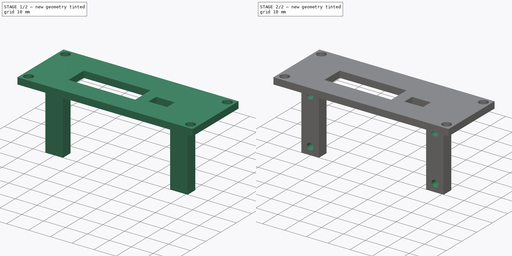
[diagram: build sequence overview — one tinted view per stage of 2, left to right]
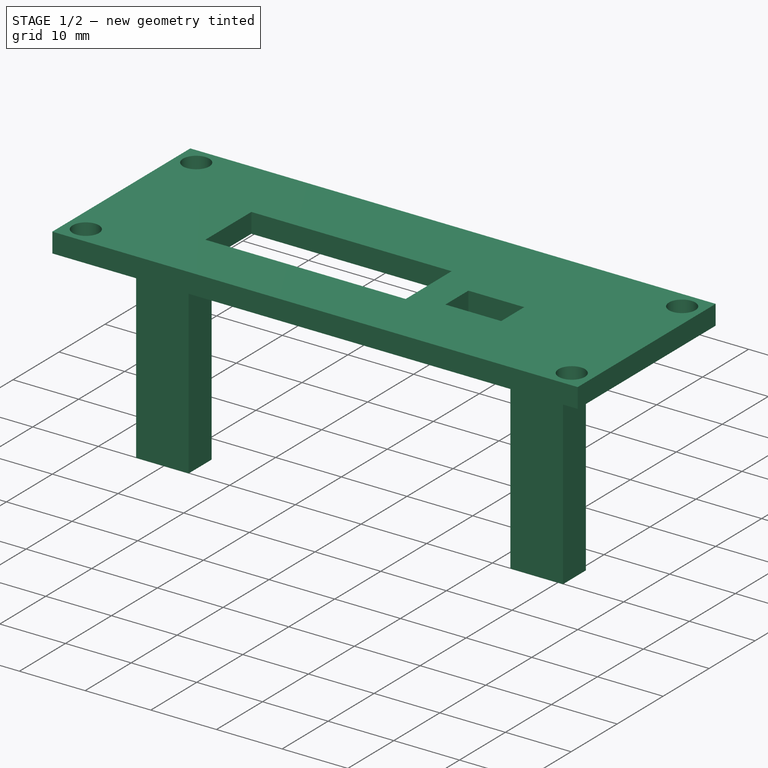
[diagram: stage 1 of 2 — iso view after this stage's code; geometry added in this stage tinted green]
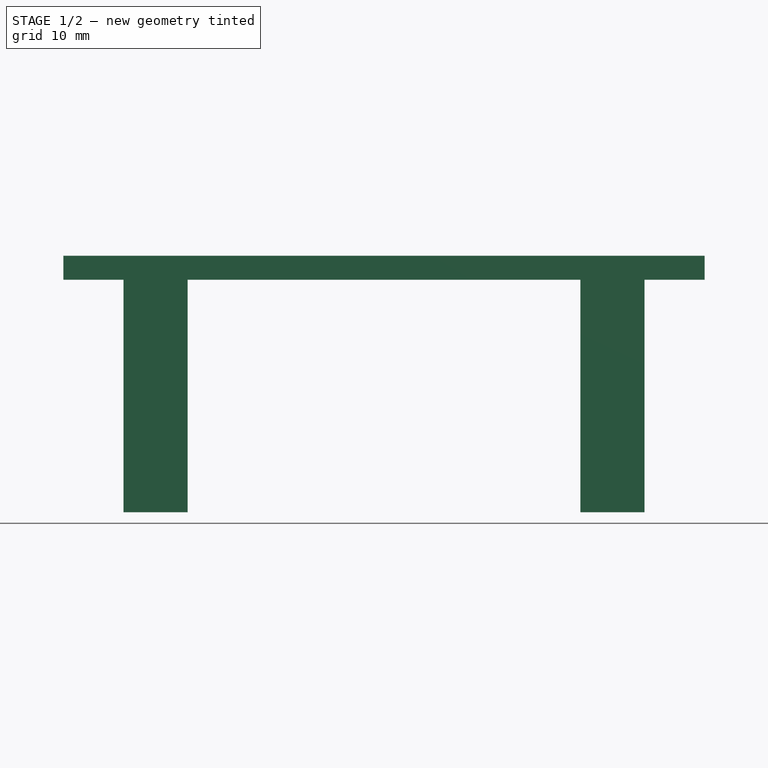
[diagram: stage 1 of 2 — front view after this stage's code; geometry added in this stage tinted green]
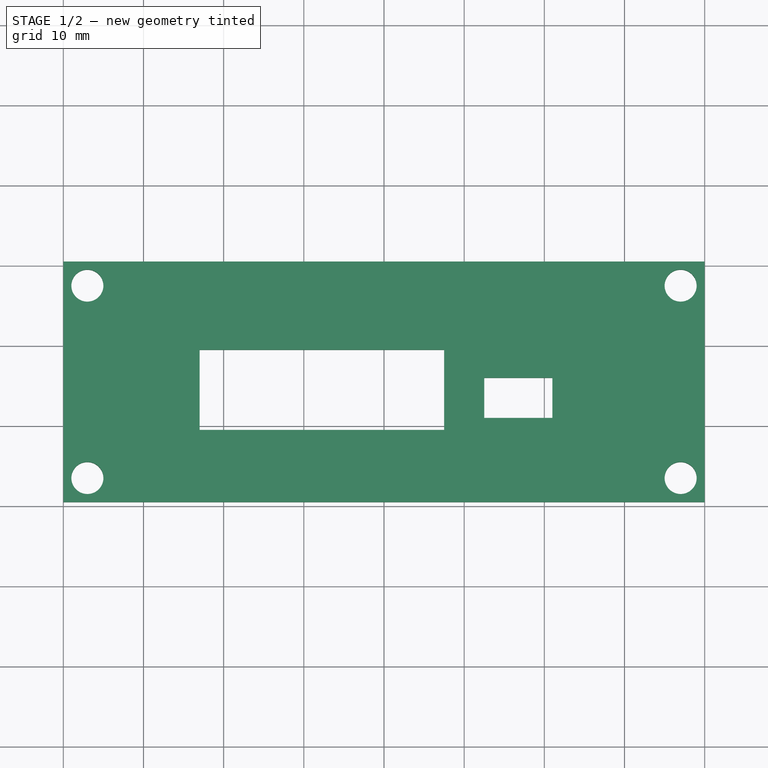
[diagram: stage 1 of 2 — top view after this stage's code; geometry added in this stage tinted green]
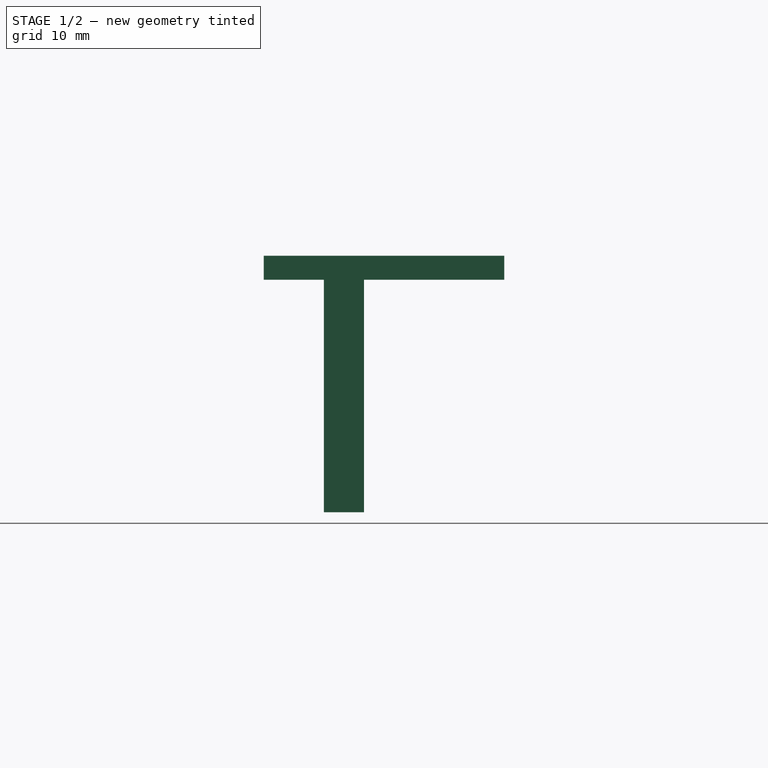
[diagram: stage 1 of 2 — right view after this stage's code; geometry added in this stage tinted green]
FCSTD DOCUMENT  (FreeCAD 0.17RUnknown)
Label: td-rgb-bracket
License: All rights reserved
LicenseURL: http://en.wikipedia.org/wiki/All_rights_reserved
objects: Sketcher::SketchObject×3, PartDesign::Pad×2, PartDesign::Pocket×1, PartDesign::Body×1
note: 10 computed .brp shape members not serialized (recipe doc carries the construction recipe); baked Part::Feature solids carry a one-line shape summary decoded from their .brp

FEATURE [Sketcher::SketchObject] Sketch
  MapMode = 5
  Support = -> [XY_Plane]
  sketch-geometry (17):
    g0: LineSegment StartX=0 StartY=0 StartZ=0 EndX=80 EndY=0 EndZ=0
    g1: LineSegment StartX=80 StartY=0 StartZ=0 EndX=80 EndY=30 EndZ=0
    g2: LineSegment StartX=80 StartY=30 StartZ=0 EndX=0 EndY=30 EndZ=0
    g3: LineSegment StartX=0 StartY=30 StartZ=0 EndX=0 EndY=0 EndZ=0
    g4: LineSegment StartX=52.5 StartY=15.5 StartZ=0 EndX=61 EndY=15.5 EndZ=0
    g5: LineSegment StartX=61 StartY=15.5 StartZ=0 EndX=61 EndY=10.5 EndZ=0
    g6: LineSegment StartX=61 StartY=10.5 StartZ=0 EndX=52.5 EndY=10.5 EndZ=0
    g7: LineSegment StartX=52.5 StartY=10.5 StartZ=0 EndX=52.5 EndY=15.5 EndZ=0
    g8: LineSegment [constr] StartX=7.5 StartY=7.5 StartZ=0 EndX=72.5 EndY=7.5 EndZ=0
    g9: LineSegment StartX=17 StartY=19 StartZ=0 EndX=47.5 EndY=19 EndZ=0
    g10: LineSegment StartX=47.5 StartY=19 StartZ=0 EndX=47.5 EndY=9 EndZ=0
    g11: LineSegment StartX=47.5 StartY=9 StartZ=0 EndX=17 EndY=9 EndZ=0
    g12: LineSegment StartX=17 StartY=9 StartZ=0 EndX=17 EndY=19 EndZ=0
    g13: Circle CenterX=3 CenterY=27 CenterZ=0 NormalX=0 NormalY=0 NormalZ=1 AngleXU=0 Radius=2
    g14: Circle CenterX=77 CenterY=27 CenterZ=0 NormalX=0 NormalY=0 NormalZ=1 AngleXU=0 Radius=2
    g15: Circle CenterX=77 CenterY=3 CenterZ=0 NormalX=0 NormalY=0 NormalZ=1 AngleXU=0 Radius=2
    g16: Circle CenterX=3 CenterY=3 CenterZ=0 NormalX=0 NormalY=0 NormalZ=1 AngleXU=0 Radius=2
  constraints (51):
    c: Coincident(g0,g1)
    c: Coincident(g1,g2)
    c: Coincident(g2,g3)
    c: Coincident(g3,g0)
    c: Horizontal(g0)
    c: Horizontal(g2)
    c: Vertical(g1)
    c: Vertical(g3)
    c: Coincident(g0,g-1)
    c: DistanceX(g2,g2) = 80
    c: DistanceY(g1,g1) = 30
    c: Coincident(g4,g5)
    c: Coincident(g5,g6)
    c: Coincident(g6,g7)
    c: Coincident(g7,g4)
    c: Horizontal(g4)
    c: Horizontal(g6)
    c: Vertical(g5)
    c: Vertical(g7)
    c: Horizontal(g8)
    c: DistanceX(g8,g8) = 65
    c: DistanceY(g-1,g8) = 7.5
    c: DistanceX(g-1,g8) = 7.5
    c: DistanceY(g8,g6) = 3
    c: DistanceX(g8,g6) = 45
    c: DistanceX(g4,g4) = 8.5
    c: DistanceY(g5,g5) = 5
    c: Coincident(g9,g10)
    c: Coincident(g10,g11)
    c: Coincident(g11,g12)
    c: Coincident(g12,g9)
    c: Horizontal(g9)
    c: Horizontal(g11)
    c: Vertical(g10)
    c: Vertical(g12)
    c: DistanceX(g9,g9) = 30.5
    c: DistanceY(g10,g10) = 10
    c: DistanceY(g8,g11) = 1.5
    c: DistanceX(g8,g11) = 9.5
    c: Equal(g13,g14)
    c: Equal(g14,g15)
    c: Equal(g15,g16)
    c: Radius(g13) = 2
    c: DistanceX(g2,g13) = 3
    c: DistanceY(g13,g2) = 3
    c: DistanceY(g-1,g16) = 3
    c: DistanceX(g-1,g16) = 3
    c: DistanceY(g0,g15) = 3
    c: DistanceX(g15,g0) = 3
    c: DistanceX(g14,g1) = 3
    c: DistanceY(g14,g1) = 3
FEATURE [PartDesign::Pad] Pad
  Length = 3
  Length2 = 100
  Profile = -> Sketch
  Type = 0
FEATURE [Sketcher::SketchObject] Sketch002
  MapMode = 2
  Placement = pos=(0,0,0) rot=(1,0,0;3.14159rad)
  Support = -> [Sketch002]
  sketch-geometry (9):
    g0: LineSegment StartX=7.5 StartY=-7.5 StartZ=0 EndX=15.5 EndY=-7.5 EndZ=0
    g1: LineSegment StartX=15.5 StartY=-7.5 StartZ=0 EndX=15.5 EndY=-12.5 EndZ=0
    g2: LineSegment StartX=15.5 StartY=-12.5 StartZ=0 EndX=7.5 EndY=-12.5 EndZ=0
    g3: LineSegment StartX=7.5 StartY=-12.5 StartZ=0 EndX=7.5 EndY=-7.5 EndZ=0
    g4: LineSegment StartX=64.5 StartY=-7.5 StartZ=0 EndX=72.5 EndY=-7.5 EndZ=0
    g5: LineSegment StartX=72.5 StartY=-7.5 StartZ=0 EndX=72.5 EndY=-12.5 EndZ=0
    g6: LineSegment StartX=72.5 StartY=-12.5 StartZ=0 EndX=64.5 EndY=-12.5 EndZ=0
    g7: LineSegment StartX=64.5 StartY=-12.5 StartZ=0 EndX=64.5 EndY=-7.5 EndZ=0
    g8: LineSegment [constr] StartX=15.5 StartY=-7.5 StartZ=0 EndX=64.5 EndY=-7.5 EndZ=0
  constraints (26):
    c: Coincident(g0,g1)
    c: Coincident(g1,g2)
    c: Coincident(g2,g3)
    c: Coincident(g3,g0)
    c: Horizontal(g0)
    c: Horizontal(g2)
    c: Vertical(g1)
    c: Vertical(g3)
    c: Coincident(g4,g5)
    c: Coincident(g5,g6)
    c: Coincident(g6,g7)
    c: Coincident(g7,g4)
    c: Horizontal(g4)
    c: Horizontal(g6)
    c: Vertical(g5)
    c: Vertical(g7)
    c: DistanceY(g1,g1) = 5
    c: DistanceX(g0,g0) = 8
    c: Equal(g1,g5)
    c: Equal(g0,g4)
    c: Coincident(g8,g0)
    c: Coincident(g8,g4)
    c: Horizontal(g8)
    c: DistanceY(g0,g-1) = 7.5
    c: DistanceX(g-1,g0) = 7.5
    c: DistanceX(g0,g4) = 65
FEATURE [PartDesign::Pad] Pad001
  BaseFeature = -> Pad
  Length = 29
  Length2 = 100
  Profile = -> Sketch002
  Type = 0
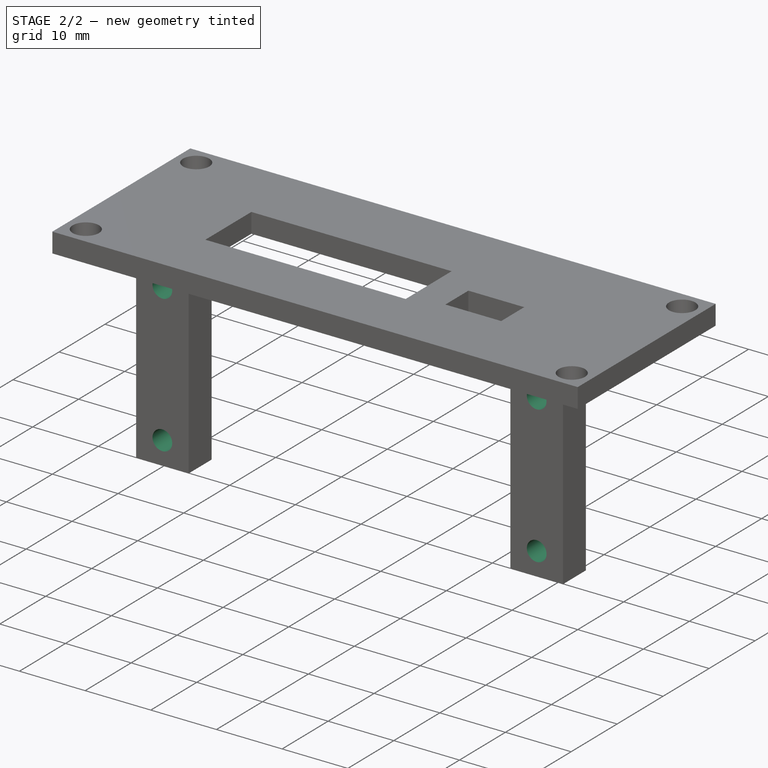
[diagram: stage 2 of 2 — iso view after this stage's code; geometry added in this stage tinted green]
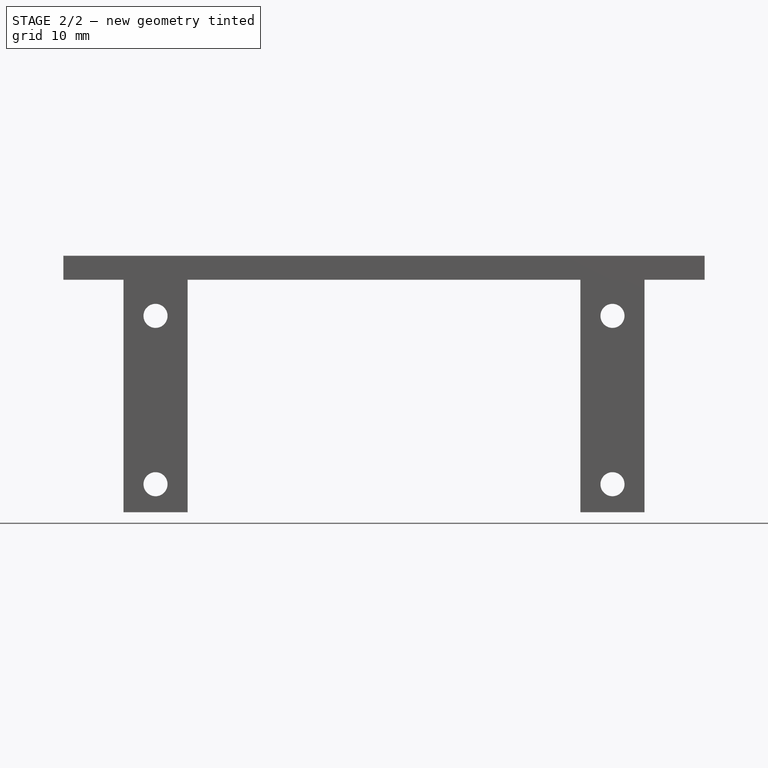
[diagram: stage 2 of 2 — front view after this stage's code; geometry added in this stage tinted green]
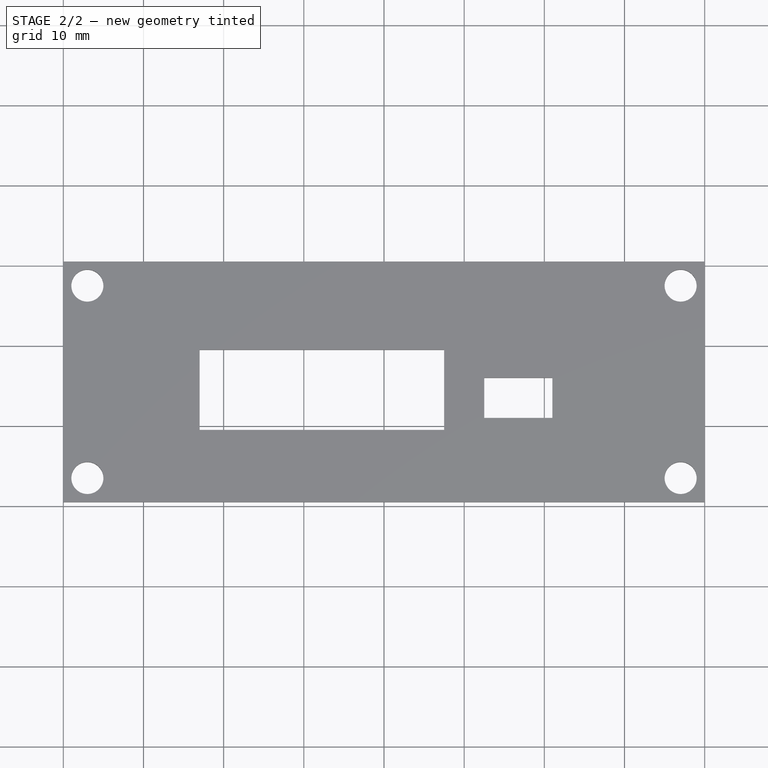
[diagram: stage 2 of 2 — top view after this stage's code; geometry added in this stage tinted green]
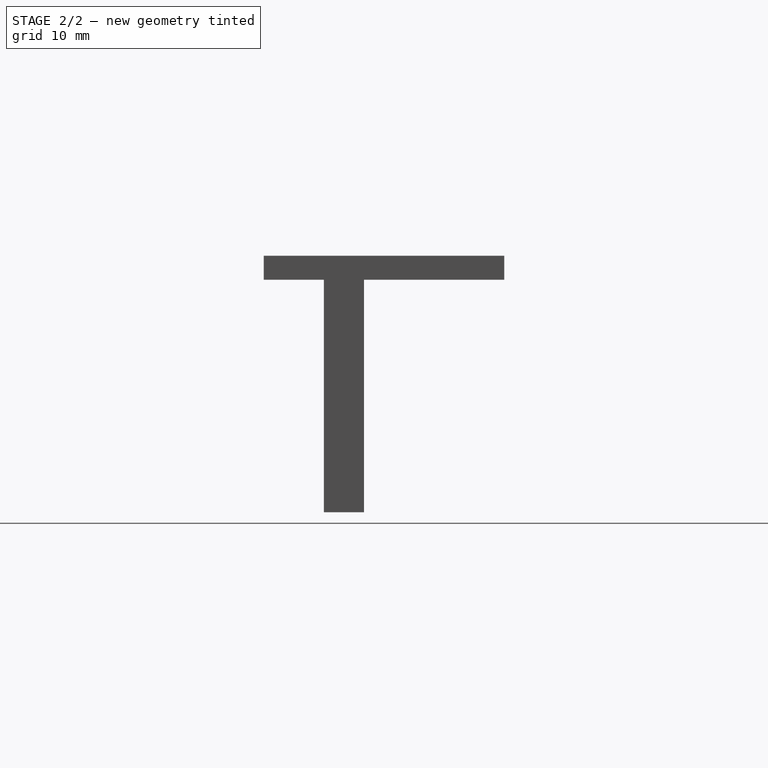
[diagram: stage 2 of 2 — right view after this stage's code; geometry added in this stage tinted green]
FEATURE [Sketcher::SketchObject] Sketch003
  MapMode = 5
  Placement = pos=(0,0,0) rot=(1,0,0;1.5708rad)
  Support = -> [XZ_Plane]
  sketch-geometry (8):
    g0: Circle CenterX=11.5 CenterY=-4.5 CenterZ=0 NormalX=0 NormalY=0 NormalZ=1 AngleXU=0 Radius=1.5
    g1: Circle CenterX=68.5 CenterY=-4.5 CenterZ=0 NormalX=0 NormalY=0 NormalZ=1 AngleXU=0 Radius=1.5
    g2: Circle CenterX=11.5 CenterY=-25.5 CenterZ=0 NormalX=0 NormalY=0 NormalZ=1 AngleXU=0 Radius=1.5
    g3: Circle CenterX=68.5 CenterY=-25.5 CenterZ=0 NormalX=0 NormalY=0 NormalZ=1 AngleXU=0 Radius=1.5
    g4: LineSegment [constr] StartX=11.5 StartY=-4.5 StartZ=0 EndX=68.5 EndY=-4.5 EndZ=0
    g5: LineSegment [constr] StartX=68.5 StartY=-4.5 StartZ=0 EndX=68.5 EndY=-25.5 EndZ=0
    g6: LineSegment [constr] StartX=68.5 StartY=-25.5 StartZ=0 EndX=11.5 EndY=-25.5 EndZ=0
    g7: LineSegment [constr] StartX=11.5 StartY=-25.5 StartZ=0 EndX=11.5 EndY=-4.5 EndZ=0
  constraints (20):
    c: Equal(g2,g0)
    c: Equal(g0,g1)
    c: Equal(g1,g3)
    c: Radius(g0) = 1.5
    c: DistanceX(g-1,g0) = 11.5
    c: DistanceY(g0,g-1) = 4.5
    c: Coincident(g4,g0)
    c: Coincident(g4,g1)
    c: Horizontal(g4)
    c: Coincident(g5,g1)
    c: Coincident(g5,g3)
    c: Vertical(g5)
    c: Coincident(g6,g3)
    c: Coincident(g6,g2)
    c: Horizontal(g6)
    c: Coincident(g7,g2)
    c: Coincident(g7,g0)
    c: Vertical(g7)
    c: DistanceY(g7,g7) = 21
    c: DistanceX(g6,g6) = 57
FEATURE [PartDesign::Pocket] Pocket
  BaseFeature = -> Pad001
  Length = 5
  Length2 = 100
  Profile = -> Sketch003
  Type = 1
FEATURE [PartDesign::Body] Body
  Group = -> [Sketch,Pad,Sketch002,Pad001,Sketch003,Pocket]
  Origin = -> Origin
  Tip = -> Pocket
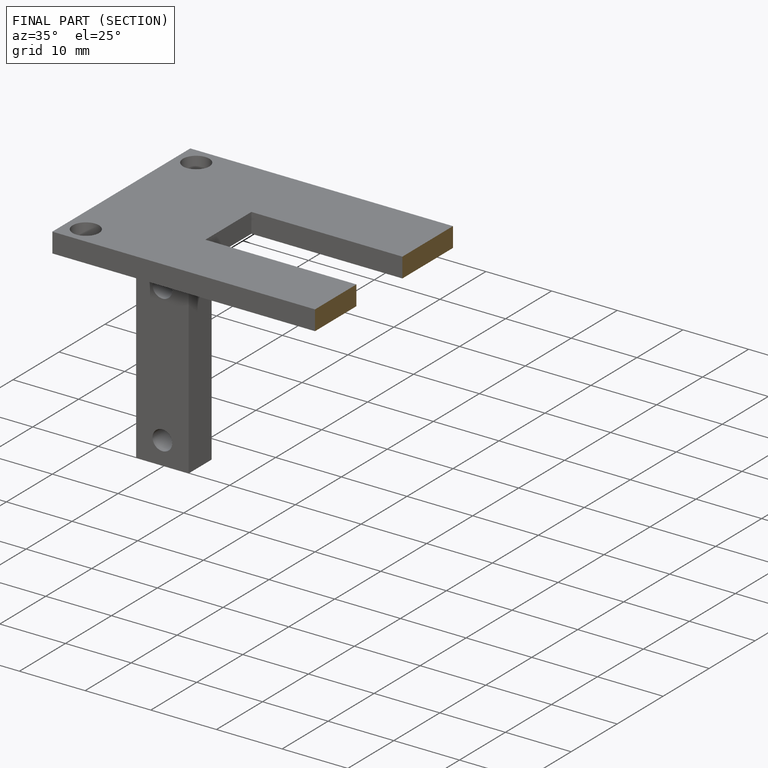
[diagram: finished part — half-section view (interior)]
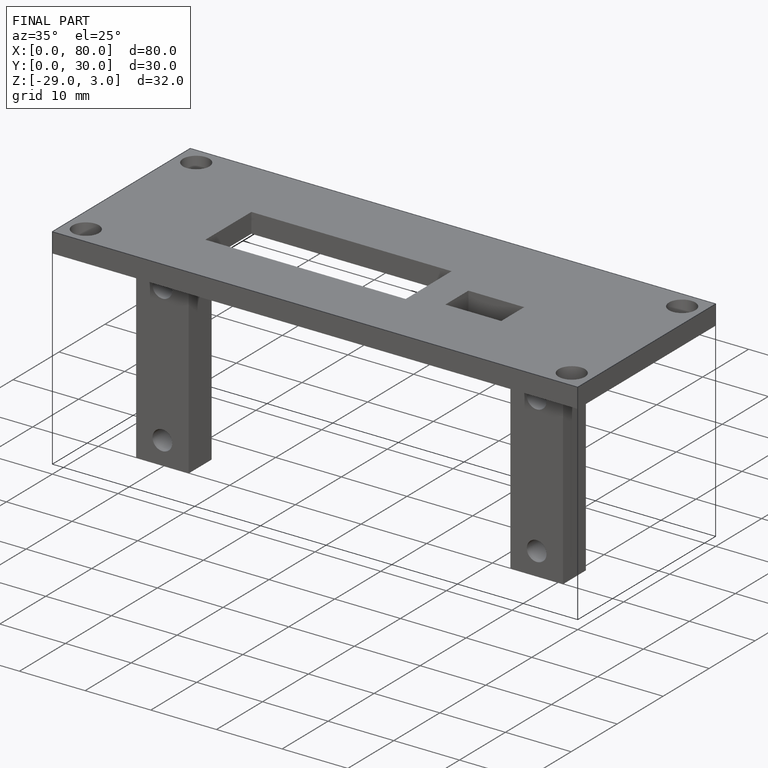
[diagram: finished part — iso view with bounding-box wireframe]
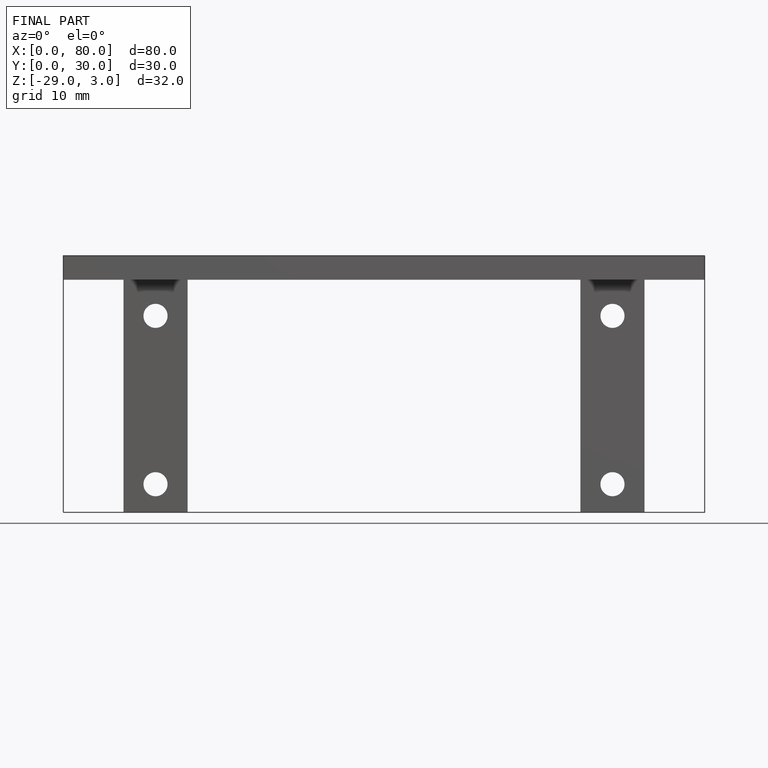
[diagram: finished part — front view with bounding-box wireframe]
